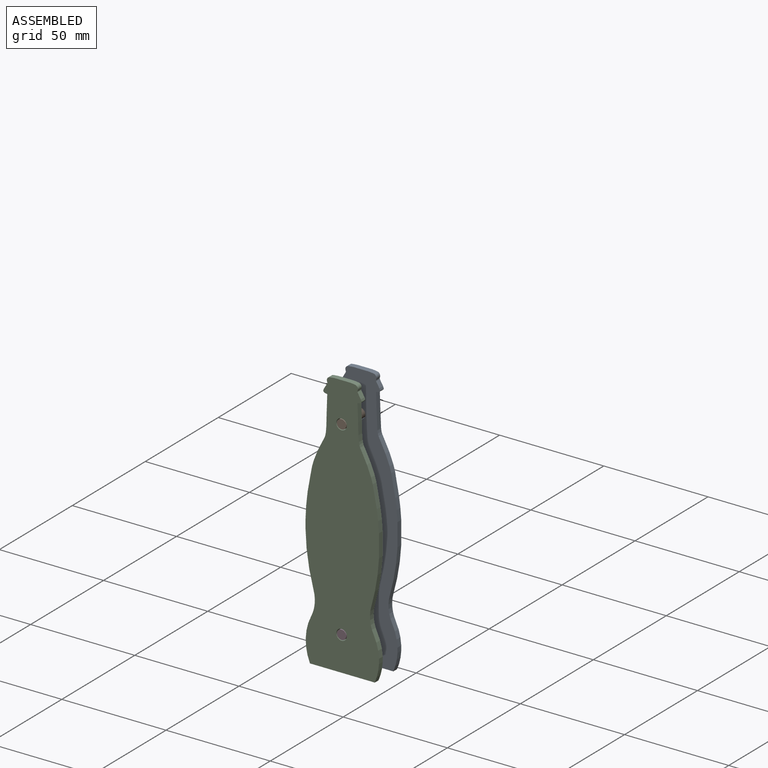
[diagram: assembled view]
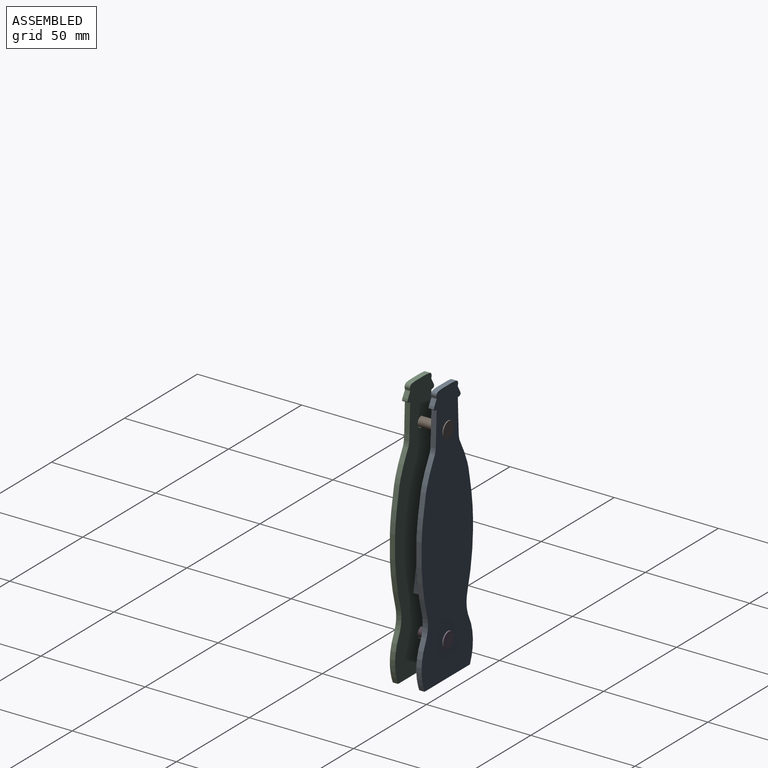
[diagram: assembled view, second angle]
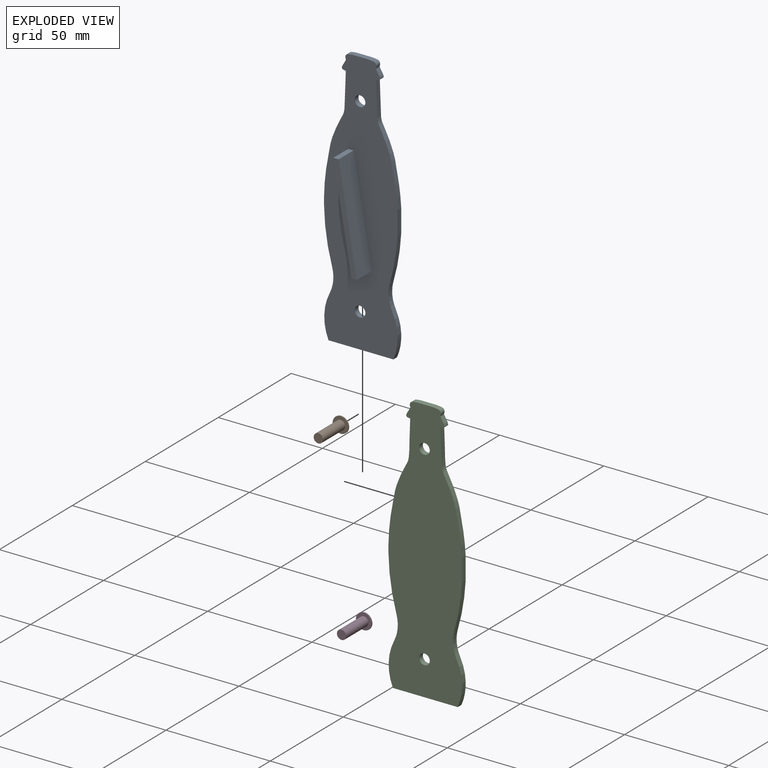
[diagram: exploded view]
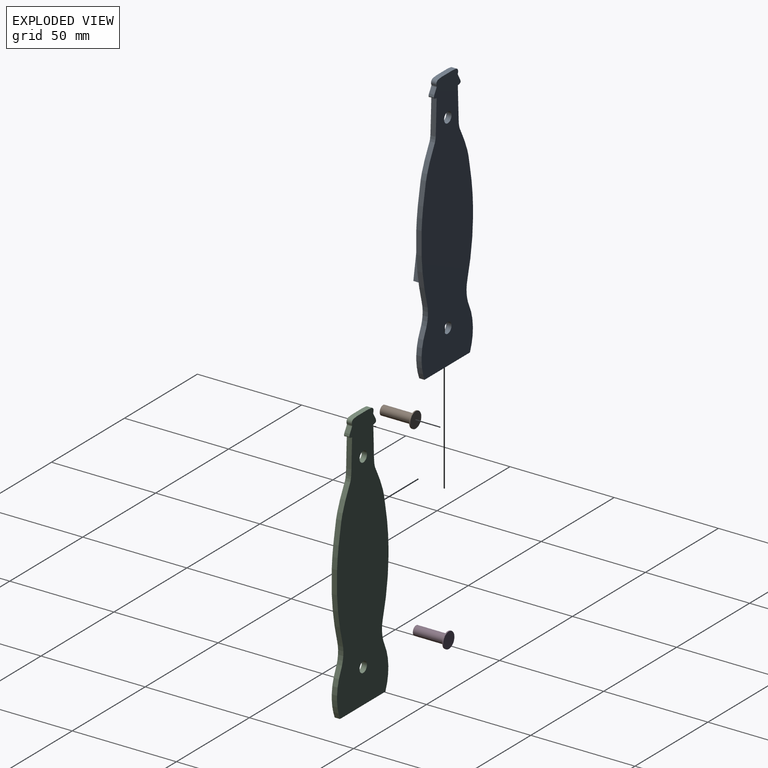
[diagram: exploded view, second angle]
ASSEMBLY  parts=4 mates=2
PART A: 33 faces, bbox 35.3x12.7x126.9 mm
  f0: plane 50.06x10.16mm, normal (-0.99,0,-0.17), area 516.1mm2, adj f1,f3,f4,f31
  f1: plane 10.16x2.54mm, normal (0.01,0,-1), area 25.8mm2, adj f0,f2,f4,f31
  f2: plane 50.06x10.16mm, normal (0.99,0,0.17), area 516.1mm2, adj f1,f3,f4,f31
  f3: plane 10.16x2.54mm, normal (-0.01,0,1), area 25.8mm2, adj f0,f2,f4,f31
  f4: plane 50.08x11.18mm, normal (0,-1,0), area 127.3mm2, adj f0,f1,f2,f3
  f5: plane 2.54x0.01mm, normal (0.92,0,-0.4), area 0mm2, adj f6,f30,f31,f32
  f6: cylinder r=24.12mm len=8.55mm, axis (0,1,0), area 22.4mm2, adj f5,f7,f31,f32
  f7: plane 2.54x2.29mm, normal (1,0,0), area 5.8mm2, adj f6,f8,f31,f32
  f8: cylinder r=24.12mm len=9.8mm, axis (0,1,0), area 26mm2, adj f7,f9,f31,f32
  f9: cylinder r=16.09mm len=11.75mm, axis (0,1,0), area 30.7mm2, adj f8,f10,f31,f32
  f10: cylinder r=99.21mm len=22.01mm, axis (0,1,0), area 56.8mm2, adj f9,f11,f31,f32
  f11: plane 10.88x2.54mm, normal (1,0,0), area 27.6mm2, adj f10,f12,f31,f32
  f12: cylinder r=99.21mm len=15.15mm, axis (0,1,0), area 38.8mm2, adj f11,f13,f31,f32
  f13: extruded ~38.56x8.3mm, area 101.6mm2, adj f12,f14,f31,f32
  f14: extruded ~5.96x2.54mm, area 19.9mm2, adj f13,f15,f31,f32
  f15: cylinder r=1.61mm len=2.54mm, axis (0,1,0), area 6.2mm2, adj f14,f16,f31,f32
  f16: cylinder r=48.33mm len=2.54mm, axis (0,1,0), area 6.2mm2, adj f15,f17,f31,f32
  f17: plane 7.25x2.54mm, normal (0,0,1), area 18.4mm2, adj f16,f18,f31,f32
  f18: cylinder r=48.33mm len=2.54mm, axis (0,1,0), area 6.2mm2, adj f17,f19,f31,f32
  f19: cylinder r=1.61mm len=2.54mm, axis (0,1,0), area 6.2mm2, adj f18,f20,f31,f32
  f20: extruded ~5.96x2.54mm, area 19.9mm2, adj f19,f21,f31,f32
  f21: extruded ~38.56x8.3mm, area 101.6mm2, adj f20,f22,f31,f32
  f22: cylinder r=99.21mm len=18.87mm, axis (0,1,0), area 48.3mm2, adj f21,f23,f31,f32
  f23: plane 3.43x2.54mm, normal (-1,0,0), area 8.7mm2, adj f22,f24,f31,f32
  f24: cylinder r=99.21mm len=25.73mm, axis (0,1,0), area 66.3mm2, adj f23,f25,f31,f32
  f25: cylinder r=16.09mm len=11.75mm, axis (0,1,0), area 30.7mm2, adj f24,f26,f31,f32
  f26: cylinder r=24.12mm len=20.64mm, axis (0,1,0), area 54.2mm2, adj f25,f27,f31,f32
  f27: plane 2.54x0.01mm, normal (-0.92,0,-0.4), area 0mm2, adj f26,f30,f31,f32
  f28: cylinder r=2.54mm len=5.08mm, axis (0,1,0), area 40.5mm2, adj f31,f32
  f29: cylinder r=2.54mm len=5.08mm, axis (0,1,0), area 40.5mm2, adj f31,f32
  f30: plane 31.12x2.54mm, normal (0,0,-1), area 79mm2, adj f5,f27,f31,f32
  f31: plane 126.9x35.27mm, normal (0,-1,0), area 3361.2mm2, adj f0,f1,f2,f3,f5,f6,f7,f8
  f32: plane 126.9x35.27mm, normal (0,1,0), area 3488.5mm2, adj f5,f6,f7,f8,f9,f10,f11,f12
PART B: 5 faces, bbox 7.6x7.6x15.7 mm
  f0: cylinder r=2.22mm len=15.24mm, axis (0,0,-1), area 212.8mm2, adj f1,f4
  f1: plane 4.45x4.45mm, normal (0,0,1), area 15.5mm2, adj f0
  f2: cylinder r=3.81mm len=7.62mm, axis (0,0,1), area 12.2mm2, adj f3,f4
  f3: plane 7.62x7.62mm, normal (0,0,-1), area 45.6mm2, adj f2
  f4: plane 7.62x7.62mm, normal (0,0,1), area 30.1mm2, adj f0,f2
PART C: 28 faces, bbox 35.3x2.5x126.9 mm
  f0: plane 2.54x0.01mm, normal (0.92,0,-0.4), area 0mm2, adj f1,f24,f26,f27
  f1: cylinder r=24.12mm len=8.55mm, axis (0,1,0), area 22.4mm2, adj f0,f2,f26,f27
  f2: plane 2.54x2.29mm, normal (1,0,0), area 5.8mm2, adj f1,f3,f26,f27
  f3: cylinder r=24.12mm len=9.8mm, axis (0,1,0), area 26mm2, adj f2,f4,f26,f27
  f4: cylinder r=16.09mm len=11.75mm, axis (0,1,0), area 30.7mm2, adj f3,f5,f26,f27
  f5: cylinder r=99.21mm len=22.01mm, axis (0,1,0), area 56.8mm2, adj f4,f6,f26,f27
  f6: plane 10.88x2.54mm, normal (1,0,0), area 27.6mm2, adj f5,f7,f26,f27
  f7: cylinder r=99.21mm len=15.15mm, axis (0,1,0), area 38.8mm2, adj f6,f8,f26,f27
  f8: extruded ~38.56x8.3mm, area 101.6mm2, adj f7,f9,f26,f27
  f9: extruded ~5.96x2.54mm, area 19.9mm2, adj f8,f10,f26,f27
  f10: cylinder r=1.61mm len=2.54mm, axis (0,1,0), area 6.2mm2, adj f9,f11,f26,f27
  f11: cylinder r=48.33mm len=2.54mm, axis (0,1,0), area 6.2mm2, adj f10,f12,f26,f27
  f12: plane 7.25x2.54mm, normal (0,0,1), area 18.4mm2, adj f11,f13,f26,f27
  f13: cylinder r=48.33mm len=2.54mm, axis (0,1,0), area 6.2mm2, adj f12,f14,f26,f27
  f14: cylinder r=1.61mm len=2.54mm, axis (0,1,0), area 6.2mm2, adj f13,f15,f26,f27
  f15: extruded ~5.96x2.54mm, area 19.9mm2, adj f14,f16,f26,f27
  f16: extruded ~38.56x8.3mm, area 101.6mm2, adj f15,f17,f26,f27
  f17: cylinder r=99.21mm len=18.87mm, axis (0,1,0), area 48.3mm2, adj f16,f18,f26,f27
  f18: plane 3.43x2.54mm, normal (-1,0,0), area 8.7mm2, adj f17,f19,f26,f27
  f19: cylinder r=99.21mm len=25.73mm, axis (0,1,0), area 66.3mm2, adj f18,f20,f26,f27
  f20: cylinder r=16.09mm len=11.75mm, axis (0,1,0), area 30.7mm2, adj f19,f21,f26,f27
  f21: cylinder r=24.12mm len=20.64mm, axis (0,1,0), area 54.2mm2, adj f20,f22,f26,f27
  f22: plane 2.54x0.01mm, normal (-0.92,0,-0.4), area 0mm2, adj f21,f24,f26,f27
  f23: cylinder r=2.54mm len=5.08mm, axis (0,1,0), area 40.5mm2, adj f26,f27
  f24: plane 31.12x2.54mm, normal (0,0,-1), area 79mm2, adj f0,f22,f26,f27
  f25: cylinder r=2.54mm len=5.08mm, axis (0,1,0), area 40.5mm2, adj f26,f27
  f26: plane 126.9x35.27mm, normal (0,-1,0), area 3488.5mm2, adj f0,f1,f2,f3,f4,f5,f6,f7
  f27: plane 126.9x35.27mm, normal (0,1,0), area 3488.5mm2, adj f0,f1,f2,f3,f4,f5,f6,f7
PART D: same geometry as B
PLACE A t=(-24.86,-54.94,9.49)mm
PLACE B rot(axis=(1,0,0),90deg) t=(-21.67,-54.94,53.01)mm
PLACE C t=(-24.86,-67.64,9.49)mm
PLACE D rot(axis=(1,0,0),90deg) t=(-21.65,-54.94,-38.26)mm
MATE fastened D.f0 <-> A.f29  axis (0,1,0) through (-21.65,-54.94,-38.26)mm
MATE fastened B.f0 <-> A.f28  axis (0,1,0) through (-21.67,-54.94,53.01)mm
